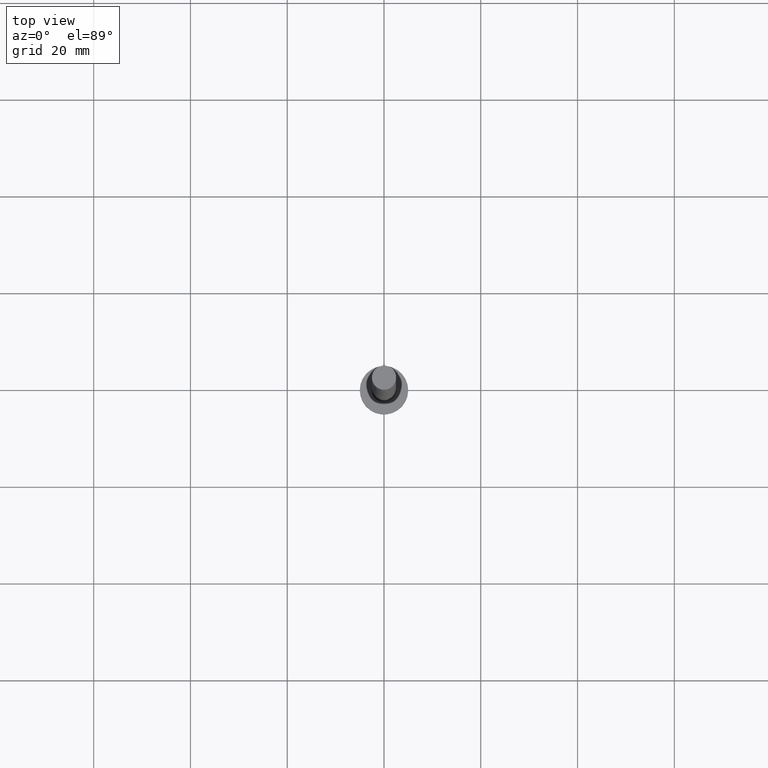
[diagram: clean part render]
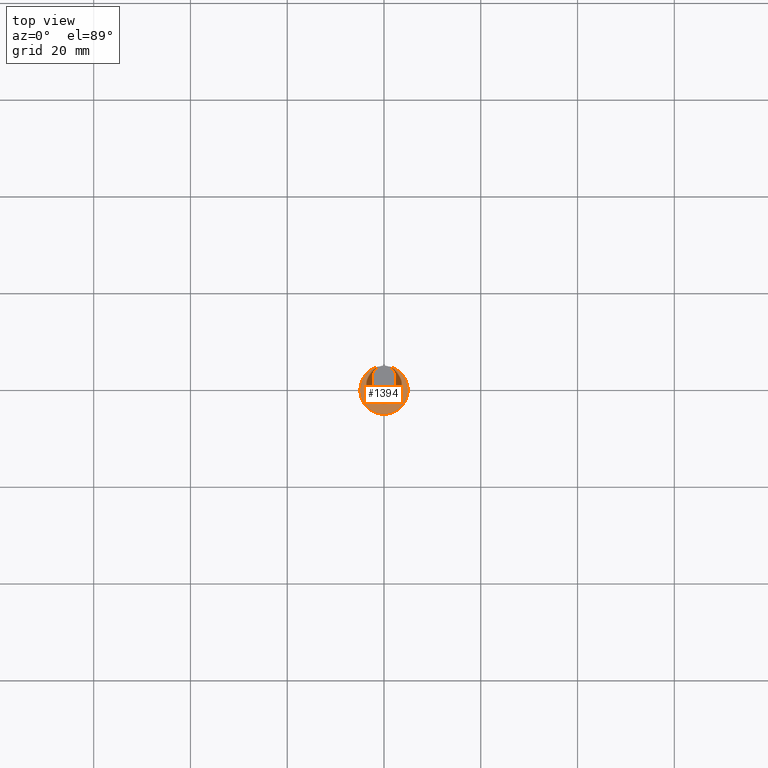
[diagram: same view with one face highlighted and labeled with its STEP entity id]
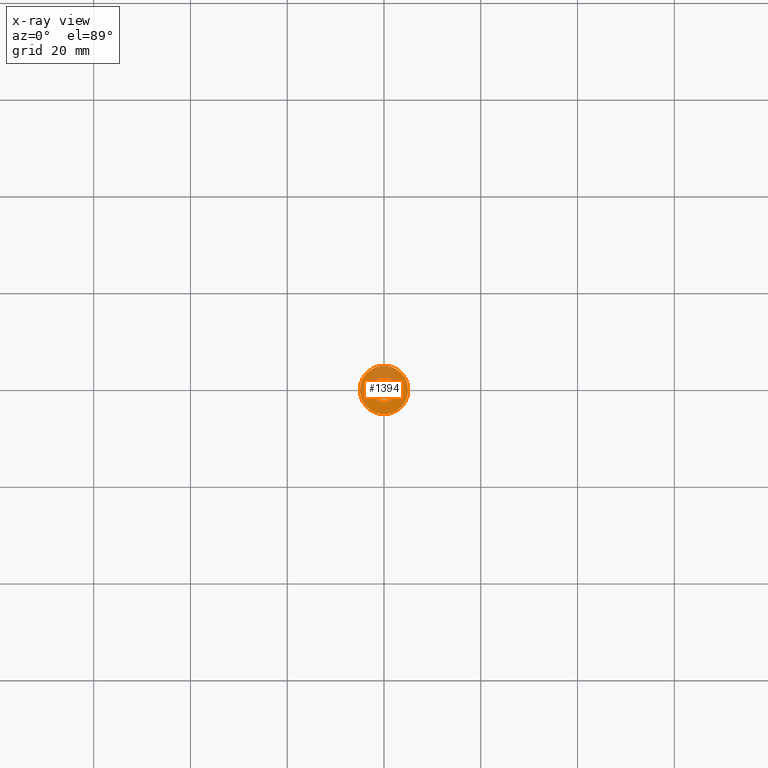
[diagram: x-ray of the same camera — body ghosted, the highlighted face saturated]
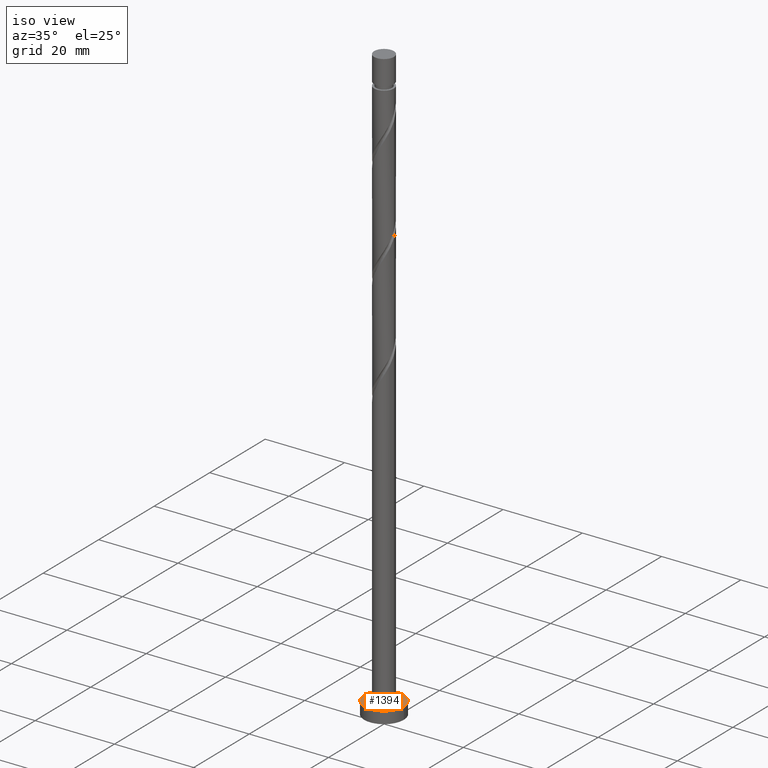
[diagram: same view with one face highlighted and labeled with its STEP entity id]
A machine part, top view. The second image highlights one B-rep face of the part: STEP entity #1394.
The next image is the same camera in x-ray: the body ghosted, the highlighted face saturated — about 22% of this face is hidden behind the body in this view.
A second angle (iso view) of the same face is appended — the face is thin or edge-on in the first view.
In plain terms, the highlighted planar face has unit normal (0, 0, 1).
Its self-contained STEP definition (entity closure, byte-faithful):
#2 = CIRCLE ( 'NONE', #940, 5.000000000000000000 ) ;
#92 = EDGE_CURVE ( 'NONE', #631, #918, #1094, .T. ) ;
#97 = CARTESIAN_POINT ( 'NONE',  ( 0.000000000000000000, 0.000000000000000000, 3.000000000000000000 ) ) ;
#167 = AXIS2_PLACEMENT_3D ( 'NONE', #184, #913, #651 ) ;
#184 = CARTESIAN_POINT ( 'NONE',  ( 0.000000000000000000, 0.000000000000000000, 3.000000000000000000 ) ) ;
#238 = PLANE ( 'NONE',  #963 ) ;
#301 = VERTEX_POINT ( 'NONE', #369 ) ;
#309 = EDGE_LOOP ( 'NONE', ( #1622, #676 ) ) ;
#369 = CARTESIAN_POINT ( 'NONE',  ( -5.000000000000000000, 0.000000000000000000, 3.000000000000000000 ) ) ;
#379 = AXIS2_PLACEMENT_3D ( 'NONE', #531, #763, #1438 ) ;
#503 = DIRECTION ( 'NONE',  ( 0.000000000000000000, 0.000000000000000000, 1.000000000000000000 ) ) ;
#531 = CARTESIAN_POINT ( 'NONE',  ( 0.000000000000000000, 0.000000000000000000, 3.000000000000000000 ) ) ;
#612 = CIRCLE ( 'NONE', #1308, 5.000000000000000000 ) ;
#631 = VERTEX_POINT ( 'NONE', #1570 ) ;
#648 = VERTEX_POINT ( 'NONE', #1273 ) ;
#651 = DIRECTION ( 'NONE',  ( 1.000000000000000000, 0.000000000000000000, 0.000000000000000000 ) ) ;
#676 = ORIENTED_EDGE ( 'NONE', *, *, #760, .T. ) ;
#760 = EDGE_CURVE ( 'NONE', #648, #301, #612, .T. ) ;
#763 = DIRECTION ( 'NONE',  ( 0.000000000000000000, 0.000000000000000000, 1.000000000000000000 ) ) ;
#884 = CIRCLE ( 'NONE', #167, 2.500000000000000000 ) ;
#913 = DIRECTION ( 'NONE',  ( 0.000000000000000000, 0.000000000000000000, 1.000000000000000000 ) ) ;
#918 = VERTEX_POINT ( 'NONE', #1573 ) ;
#940 = AXIS2_PLACEMENT_3D ( 'NONE', #97, #1348, #1114 ) ;
#963 = AXIS2_PLACEMENT_3D ( 'NONE', #1663, #503, #1125 ) ;
#1069 = EDGE_LOOP ( 'NONE', ( #1161, #1516 ) ) ;
#1094 = CIRCLE ( 'NONE', #379, 2.500000000000000000 ) ;
#1114 = DIRECTION ( 'NONE',  ( 1.000000000000000000, 0.000000000000000000, 0.000000000000000000 ) ) ;
#1125 = DIRECTION ( 'NONE',  ( 1.000000000000000000, 0.000000000000000000, -0.000000000000000000 ) ) ;
#1145 = FACE_BOUND ( 'NONE', #1069, .T. ) ;
#1161 = ORIENTED_EDGE ( 'NONE', *, *, #1593, .F. ) ;
#1273 = CARTESIAN_POINT ( 'NONE',  ( 5.000000000000000000, 6.123233995736766282E-16, 3.000000000000000000 ) ) ;
#1280 = FACE_OUTER_BOUND ( 'NONE', #309, .T. ) ;
#1308 = AXIS2_PLACEMENT_3D ( 'NONE', #1436, #1443, #1452 ) ;
#1348 = DIRECTION ( 'NONE',  ( 0.000000000000000000, 0.000000000000000000, 1.000000000000000000 ) ) ;
#1394 = ADVANCED_FACE ( 'NONE', ( #1145, #1280 ), #238, .T. ) ;
#1436 = CARTESIAN_POINT ( 'NONE',  ( 0.000000000000000000, 0.000000000000000000, 3.000000000000000000 ) ) ;
#1438 = DIRECTION ( 'NONE',  ( 1.000000000000000000, 0.000000000000000000, 0.000000000000000000 ) ) ;
#1443 = DIRECTION ( 'NONE',  ( 0.000000000000000000, 0.000000000000000000, 1.000000000000000000 ) ) ;
#1452 = DIRECTION ( 'NONE',  ( 1.000000000000000000, 0.000000000000000000, 0.000000000000000000 ) ) ;
#1516 = ORIENTED_EDGE ( 'NONE', *, *, #92, .F. ) ;
#1570 = CARTESIAN_POINT ( 'NONE',  ( 2.500000000000000000, 3.061616997868383141E-16, 3.000000000000000000 ) ) ;
#1573 = CARTESIAN_POINT ( 'NONE',  ( -2.500000000000000000, 0.000000000000000000, 3.000000000000000000 ) ) ;
#1593 = EDGE_CURVE ( 'NONE', #918, #631, #884, .T. ) ;
#1622 = ORIENTED_EDGE ( 'NONE', *, *, #1638, .T. ) ;
#1638 = EDGE_CURVE ( 'NONE', #301, #648, #2, .T. ) ;
#1663 = CARTESIAN_POINT ( 'NONE',  ( 0.000000000000000000, 0.000000000000000000, 3.000000000000000000 ) ) ;